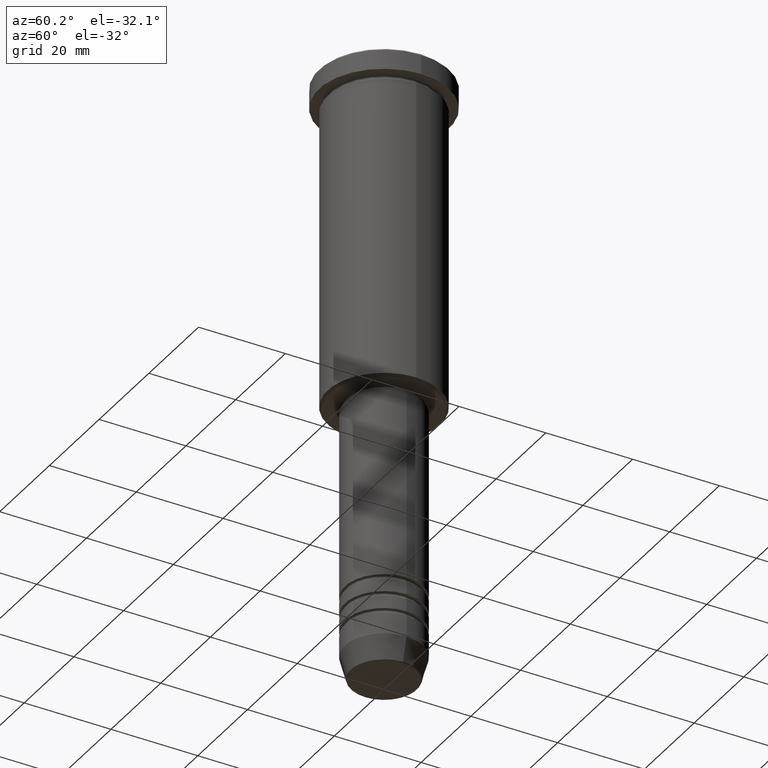
[diagram: clean part render]
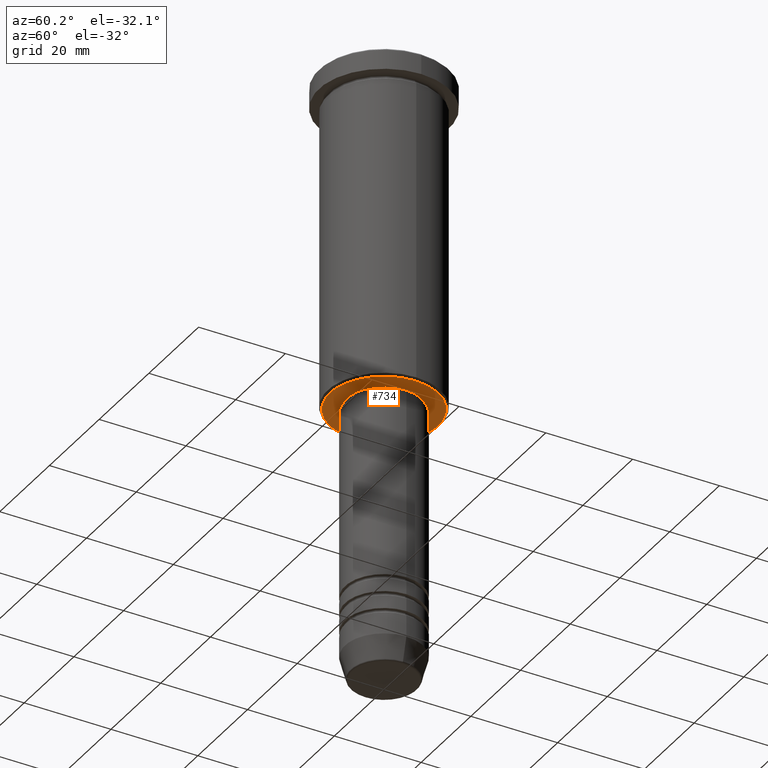
[diagram: same view with one face highlighted and labeled with its STEP entity id]
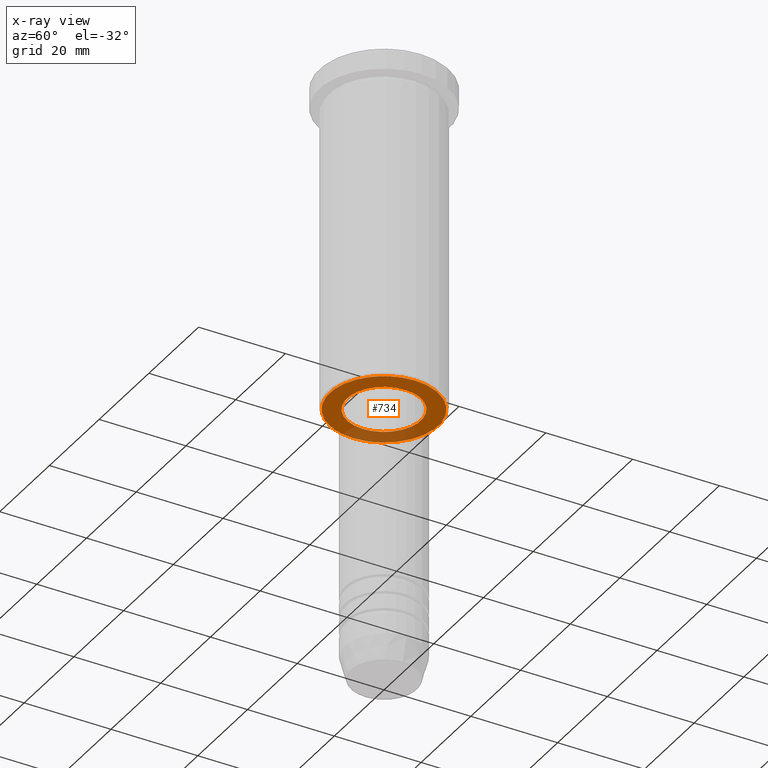
[diagram: x-ray of the same camera — body ghosted, the highlighted face saturated]
A machine part, auxiliary view. The second image highlights one B-rep face of the part: STEP entity #734.
The next image is the same camera in x-ray: the body ghosted, the highlighted face saturated — about 23% of this face is hidden behind the body in this view.
In plain terms, the highlighted planar face has unit normal (0, 0, -1).
Its self-contained STEP definition (entity closure, byte-faithful):
#3 = VERTEX_POINT ( 'NONE', #579 ) ;
#5 = CARTESIAN_POINT ( 'NONE',  ( 0.000000000000000000, 0.000000000000000000, -76.00000000000001421 ) ) ;
#11 = CIRCLE ( 'NONE', #243, 12.49999999999996980 ) ;
#13 = EDGE_LOOP ( 'NONE', ( #408, #611 ) ) ;
#57 = AXIS2_PLACEMENT_3D ( 'NONE', #273, #1172, #707 ) ;
#118 = ORIENTED_EDGE ( 'NONE', *, *, #517, .T. ) ;
#119 = FACE_OUTER_BOUND ( 'NONE', #13, .T. ) ;
#131 = EDGE_CURVE ( 'NONE', #3, #607, #1093, .T. ) ;
#149 = EDGE_LOOP ( 'NONE', ( #118, #1080 ) ) ;
#175 = CARTESIAN_POINT ( 'NONE',  ( 0.000000000000000000, 0.000000000000000000, -76.00000000000001421 ) ) ;
#210 = DIRECTION ( 'NONE',  ( -1.000000000000000000, 0.000000000000000000, -0.000000000000000000 ) ) ;
#225 = EDGE_CURVE ( 'NONE', #1049, #584, #11, .T. ) ;
#243 = AXIS2_PLACEMENT_3D ( 'NONE', #5, #644, #577 ) ;
#273 = CARTESIAN_POINT ( 'NONE',  ( 0.000000000000000000, 0.000000000000000000, -76.00000000000001421 ) ) ;
#286 = PLANE ( 'NONE',  #901 ) ;
#346 = CARTESIAN_POINT ( 'NONE',  ( 8.500000000000000000, 0.000000000000000000, -76.00000000000001421 ) ) ;
#365 = CARTESIAN_POINT ( 'NONE',  ( 0.000000000000000000, 0.000000000000000000, -76.00000000000001421 ) ) ;
#389 = DIRECTION ( 'NONE',  ( 0.000000000000000000, 0.000000000000000000, -1.000000000000000000 ) ) ;
#408 = ORIENTED_EDGE ( 'NONE', *, *, #225, .T. ) ;
#439 = DIRECTION ( 'NONE',  ( -0.000000000000000000, -0.000000000000000000, 1.000000000000000000 ) ) ;
#517 = EDGE_CURVE ( 'NONE', #607, #3, #658, .T. ) ;
#531 = CIRCLE ( 'NONE', #1012, 12.49999999999996980 ) ;
#577 = DIRECTION ( 'NONE',  ( -1.000000000000000000, 0.000000000000000000, 0.000000000000000000 ) ) ;
#579 = CARTESIAN_POINT ( 'NONE',  ( -8.500000000000000000, 1.040949779275250140E-15, -76.00000000000001421 ) ) ;
#584 = VERTEX_POINT ( 'NONE', #1167 ) ;
#607 = VERTEX_POINT ( 'NONE', #346 ) ;
#611 = ORIENTED_EDGE ( 'NONE', *, *, #1009, .T. ) ;
#644 = DIRECTION ( 'NONE',  ( 0.000000000000000000, 0.000000000000000000, -1.000000000000000000 ) ) ;
#658 = CIRCLE ( 'NONE', #1160, 8.500000000000000000 ) ;
#697 = DIRECTION ( 'NONE',  ( -1.000000000000000000, 0.000000000000000000, 0.000000000000000000 ) ) ;
#707 = DIRECTION ( 'NONE',  ( 1.000000000000000000, 0.000000000000000000, 0.000000000000000000 ) ) ;
#734 = ADVANCED_FACE ( 'NONE', ( #119, #926 ), #286, .T. ) ;
#797 = CARTESIAN_POINT ( 'NONE',  ( 12.49999999999996980, 0.000000000000000000, -76.00000000000001421 ) ) ;
#901 = AXIS2_PLACEMENT_3D ( 'NONE', #1020, #389, #210 ) ;
#926 = FACE_BOUND ( 'NONE', #149, .T. ) ;
#1009 = EDGE_CURVE ( 'NONE', #584, #1049, #531, .T. ) ;
#1012 = AXIS2_PLACEMENT_3D ( 'NONE', #175, #1165, #697 ) ;
#1020 = CARTESIAN_POINT ( 'NONE',  ( 0.000000000000000000, 13.00000000000000000, -76.00000000000001421 ) ) ;
#1049 = VERTEX_POINT ( 'NONE', #797 ) ;
#1080 = ORIENTED_EDGE ( 'NONE', *, *, #131, .T. ) ;
#1082 = DIRECTION ( 'NONE',  ( 1.000000000000000000, 0.000000000000000000, 0.000000000000000000 ) ) ;
#1093 = CIRCLE ( 'NONE', #57, 8.500000000000000000 ) ;
#1160 = AXIS2_PLACEMENT_3D ( 'NONE', #365, #439, #1082 ) ;
#1165 = DIRECTION ( 'NONE',  ( 0.000000000000000000, 0.000000000000000000, -1.000000000000000000 ) ) ;
#1167 = CARTESIAN_POINT ( 'NONE',  ( -12.49999999999996980, 1.561424668912873336E-15, -76.00000000000001421 ) ) ;
#1172 = DIRECTION ( 'NONE',  ( -0.000000000000000000, -0.000000000000000000, 1.000000000000000000 ) ) ;